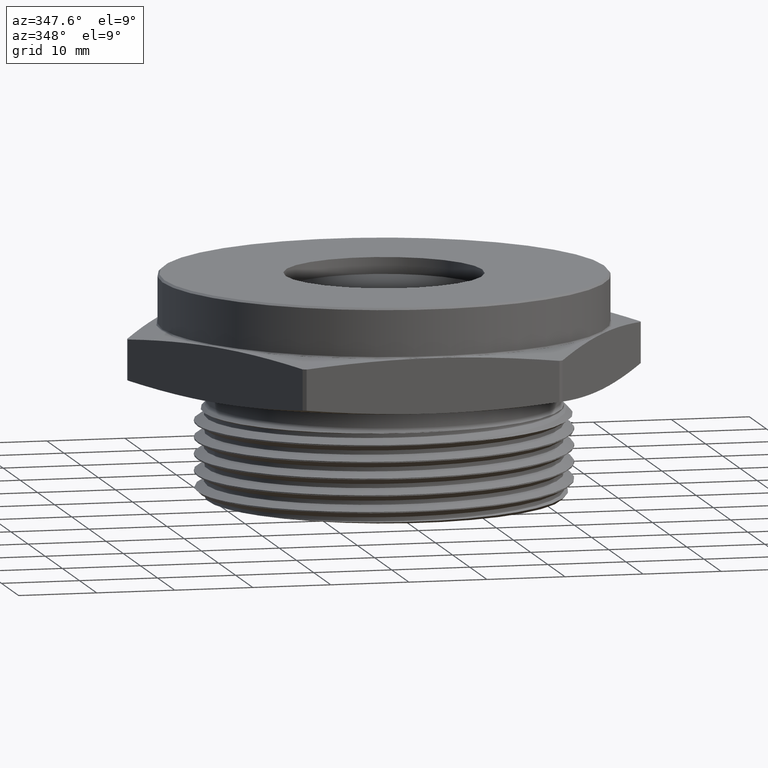
[diagram: clean part render]
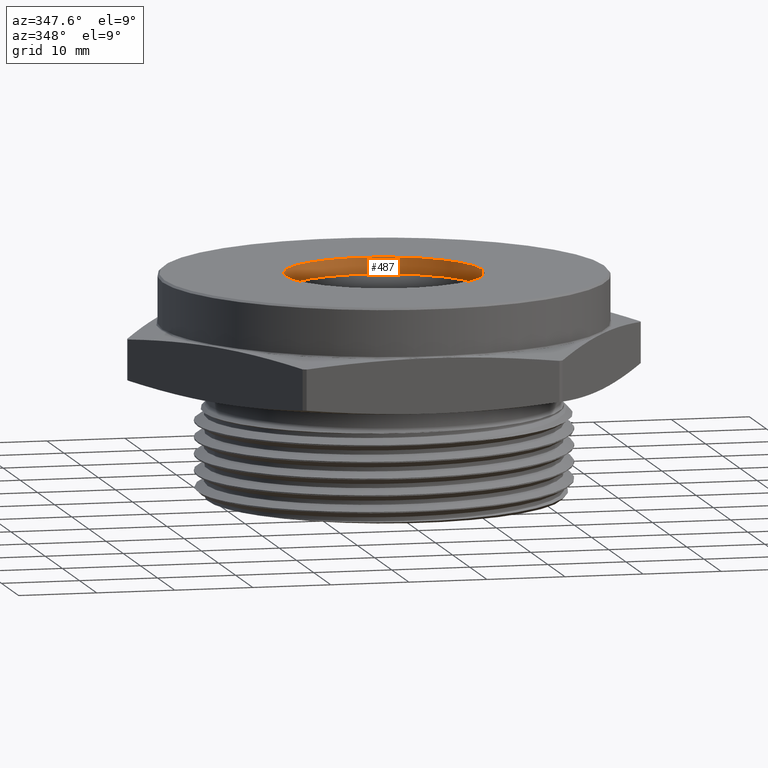
[diagram: same view with one face highlighted and labeled with its STEP entity id]
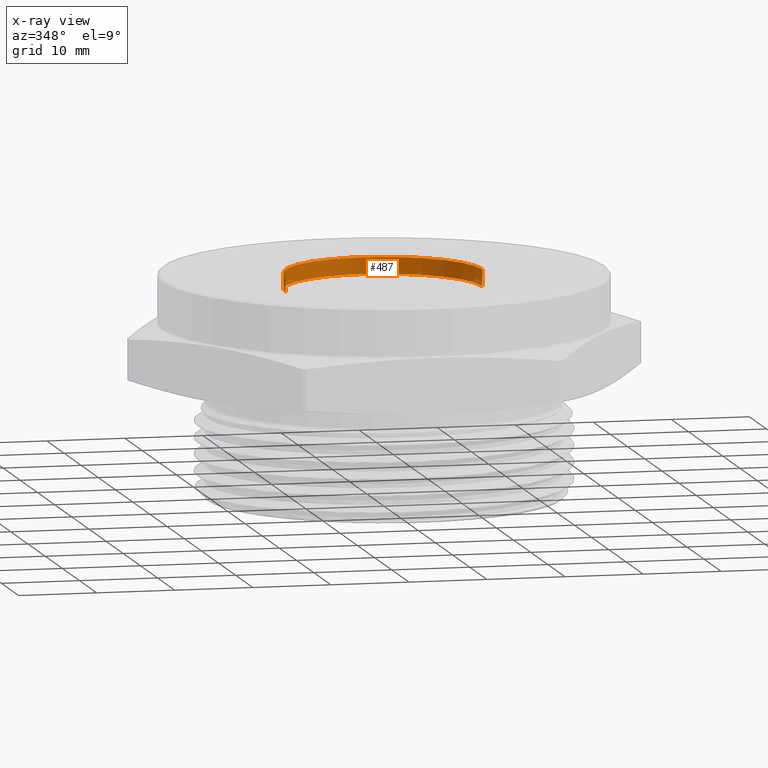
[diagram: x-ray of the same camera — body ghosted, the highlighted face saturated]
A machine part, auxiliary view. The second image highlights one B-rep face of the part: STEP entity #487.
The next image is the same camera in x-ray: the body ghosted, the highlighted face saturated — about 3% of this face is hidden behind the body in this view.
In plain terms, the highlighted cylindrical surface (partial cylindrical patch) has radius 12.5984 mm, axis along (-0, -0, 1).
Its self-contained STEP definition (entity closure, byte-faithful):
#192 = EDGE_LOOP ( 'NONE', ( #2528, #2529, #2530, #2531 ) ) ;
#214 = FACE_OUTER_BOUND ( 'NONE', #192, .T. ) ;
#222 = CYLINDRICAL_SURFACE ( 'NONE', #700, 0.4960000000000002700 ) ;
#237 = LINE ( 'NONE', #2066, #244 ) ;
#244 = VECTOR ( 'NONE', #2060, 39.37007874015748100 ) ;
#358 = EDGE_CURVE ( 'NONE', #545, #548, #816, .T. ) ;
#366 = EDGE_CURVE ( 'NONE', #561, #536, #819, .T. ) ;
#487 = ADVANCED_FACE ( 'NONE', ( #214 ), #222, .F. ) ;
#536 = VERTEX_POINT ( 'NONE', #3419 ) ;
#545 = VERTEX_POINT ( 'NONE', #3426 ) ;
#548 = VERTEX_POINT ( 'NONE', #3429 ) ;
#561 = VERTEX_POINT ( 'NONE', #3442 ) ;
#628 = EDGE_CURVE ( 'NONE', #536, #548, #237, .T. ) ;
#630 = EDGE_CURVE ( 'NONE', #561, #545, #824, .T. ) ;
#681 = AXIS2_PLACEMENT_3D ( 'NONE', #3161, #3162, #3163 ) ;
#686 = AXIS2_PLACEMENT_3D ( 'NONE', #3263, #3264, #3265 ) ;
#700 = AXIS2_PLACEMENT_3D ( 'NONE', #3411, #3407, #3409 ) ;
#816 = CIRCLE ( 'NONE', #681, 0.4960000000000002700 ) ;
#819 = CIRCLE ( 'NONE', #686, 0.4960000000000002700 ) ;
#824 = LINE ( 'NONE', #2065, #1801 ) ;
#1801 = VECTOR ( 'NONE', #2064, 39.37007874015748100 ) ;
#2060 = DIRECTION ( 'NONE',  ( -0.0000000000000000000, -0.0000000000000000000, 1.000000000000000000 ) ) ;
#2064 = DIRECTION ( 'NONE',  ( -0.0000000000000000000, -0.0000000000000000000, 1.000000000000000000 ) ) ;
#2065 = CARTESIAN_POINT ( 'NONE',  ( 0.4960000000000002700, 0.0000000000000000000, 0.6556720889849433400 ) ) ;
#2066 = CARTESIAN_POINT ( 'NONE',  ( -0.4960000000000002700, 6.074248123770874500E-017, 0.6556720889849433400 ) ) ;
#2528 = ORIENTED_EDGE ( 'NONE', *, *, #628, .F. ) ;
#2529 = ORIENTED_EDGE ( 'NONE', *, *, #366, .F. ) ;
#2530 = ORIENTED_EDGE ( 'NONE', *, *, #630, .T. ) ;
#2531 = ORIENTED_EDGE ( 'NONE', *, *, #358, .T. ) ;
#3161 = CARTESIAN_POINT ( 'NONE',  ( 0.0000000000000000000, 0.0000000000000000000, 0.5300000000000000300 ) ) ;
#3162 = DIRECTION ( 'NONE',  ( -0.0000000000000000000, -0.0000000000000000000, 1.000000000000000000 ) ) ;
#3163 = DIRECTION ( 'NONE',  ( 1.000000000000000000, 0.0000000000000000000, 0.0000000000000000000 ) ) ;
#3263 = CARTESIAN_POINT ( 'NONE',  ( 0.0000000000000000000, 0.0000000000000000000, 0.4460000000000000600 ) ) ;
#3264 = DIRECTION ( 'NONE',  ( -0.0000000000000000000, -0.0000000000000000000, 1.000000000000000000 ) ) ;
#3265 = DIRECTION ( 'NONE',  ( 1.000000000000000000, 0.0000000000000000000, 0.0000000000000000000 ) ) ;
#3407 = DIRECTION ( 'NONE',  ( -0.0000000000000000000, -0.0000000000000000000, 1.000000000000000000 ) ) ;
#3409 = DIRECTION ( 'NONE',  ( 1.000000000000000000, 0.0000000000000000000, 0.0000000000000000000 ) ) ;
#3411 = CARTESIAN_POINT ( 'NONE',  ( 0.0000000000000000000, 0.0000000000000000000, 0.6556720889849433400 ) ) ;
#3419 = CARTESIAN_POINT ( 'NONE',  ( -0.4960000000000002700, 6.074248123770874500E-017, 0.4460000000000000600 ) ) ;
#3426 = CARTESIAN_POINT ( 'NONE',  ( 0.4960000000000002700, 0.0000000000000000000, 0.5300000000000000300 ) ) ;
#3429 = CARTESIAN_POINT ( 'NONE',  ( -0.4960000000000002700, 6.074248123770874500E-017, 0.5300000000000000300 ) ) ;
#3442 = CARTESIAN_POINT ( 'NONE',  ( 0.4960000000000002700, 0.0000000000000000000, 0.4460000000000000600 ) ) ;